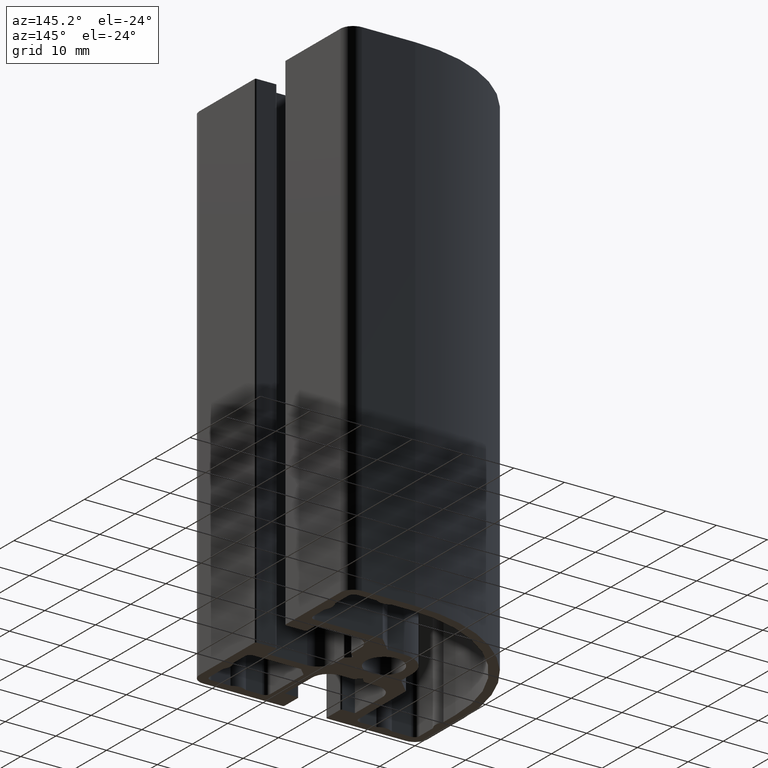
[diagram: clean part render]
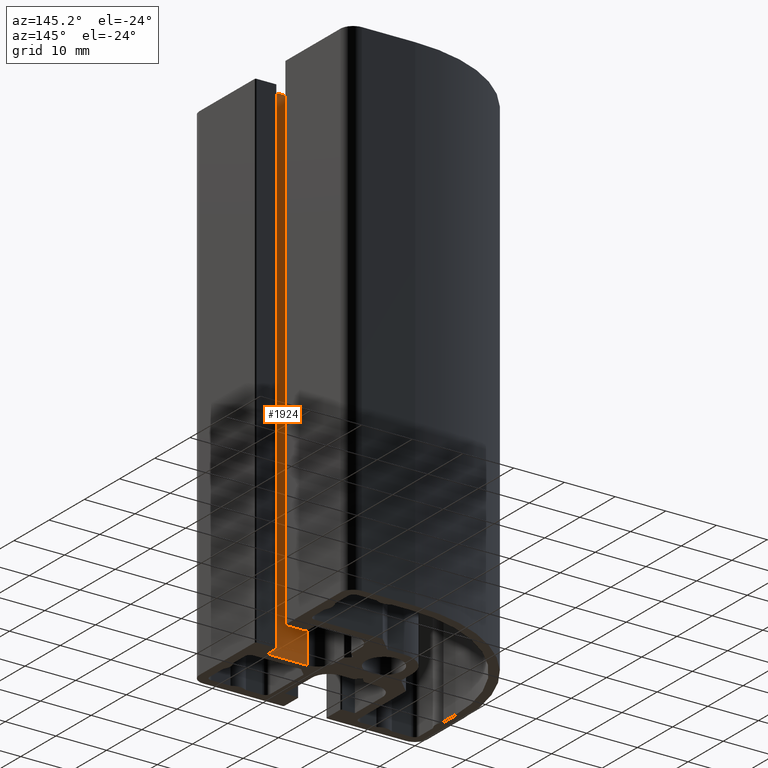
[diagram: same view with one face highlighted and labeled with its STEP entity id]
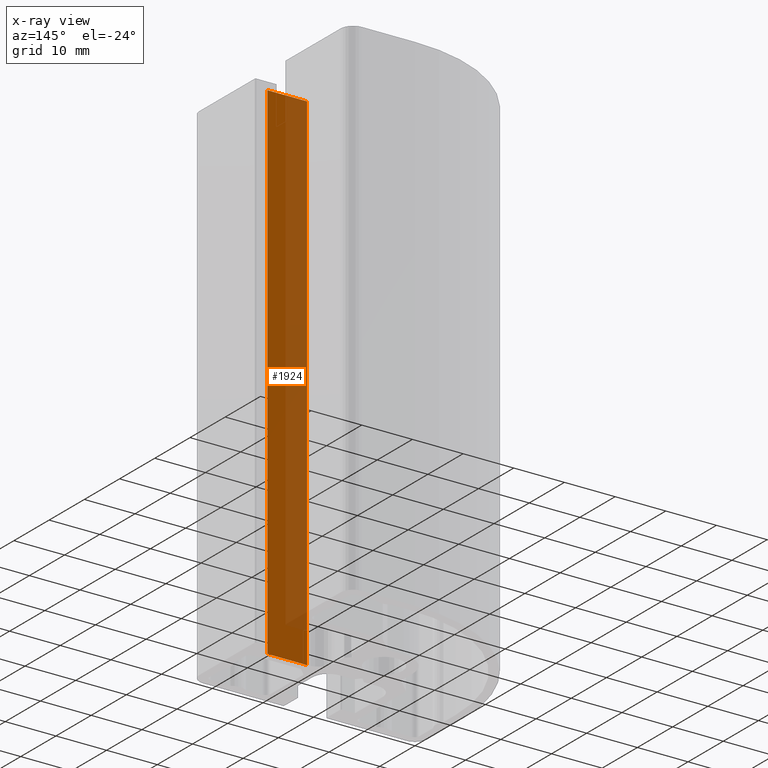
[diagram: x-ray of the same camera — body ghosted, the highlighted face saturated]
A machine part, auxiliary view. The second image highlights one B-rep face of the part: STEP entity #1924.
The next image is the same camera in x-ray: the body ghosted, the highlighted face saturated — about 51% of this face is hidden behind the body in this view.
In plain terms, the highlighted planar face has unit normal (-0, -1, 0).
Its self-contained STEP definition (entity closure, byte-faithful):
#45=PLANE('',#2087);
#125=FACE_OUTER_BOUND('',#225,.T.);
#225=EDGE_LOOP('',(#1454,#1455,#1456,#1457));
#375=LINE('',#3085,#565);
#376=LINE('',#3089,#566);
#377=LINE('',#3091,#567);
#378=LINE('',#3092,#568);
#565=VECTOR('',#2501,100.);
#566=VECTOR('',#2506,7.80000000000001);
#567=VECTOR('',#2507,100.);
#568=VECTOR('',#2508,7.80000000000001);
#864=VERTEX_POINT('',#3082);
#865=VERTEX_POINT('',#3084);
#866=VERTEX_POINT('',#3088);
#867=VERTEX_POINT('',#3090);
#1110=EDGE_CURVE('',#865,#864,#375,.T.);
#1112=EDGE_CURVE('',#866,#864,#376,.T.);
#1113=EDGE_CURVE('',#867,#866,#377,.T.);
#1114=EDGE_CURVE('',#865,#867,#378,.T.);
#1454=ORIENTED_EDGE('',*,*,#1112,.F.);
#1455=ORIENTED_EDGE('',*,*,#1113,.F.);
#1456=ORIENTED_EDGE('',*,*,#1114,.F.);
#1457=ORIENTED_EDGE('',*,*,#1110,.T.);
#1924=ADVANCED_FACE('',(#125),#45,.F.);
#2087=AXIS2_PLACEMENT_3D('',#3087,#2504,#2505);
#2501=DIRECTION('',(0.,0.,1.));
#2504=DIRECTION('center_axis',(-1.42336285208353E-16,-1.,0.));
#2505=DIRECTION('ref_axis',(1.,-1.77635683940025E-16,0.));
#2506=DIRECTION('',(-1.,1.42336285208353E-16,0.));
#2507=DIRECTION('',(0.,0.,1.));
#2508=DIRECTION('',(1.,-1.42336285208353E-16,0.));
#3082=CARTESIAN_POINT('',(10.4000000000006,-6.9,100.));
#3084=CARTESIAN_POINT('',(10.4000000000006,-6.9,0.));
#3085=CARTESIAN_POINT('',(10.4000000000006,-6.9,0.));
#3087=CARTESIAN_POINT('Origin',(10.4000000000006,-6.9,0.));
#3088=CARTESIAN_POINT('',(18.2000000000006,-6.9,100.));
#3089=CARTESIAN_POINT('',(5.20000000000029,-6.9,100.));
#3090=CARTESIAN_POINT('',(18.2000000000006,-6.9,0.));
#3091=CARTESIAN_POINT('',(18.2000000000006,-6.9,0.));
#3092=CARTESIAN_POINT('',(5.20000000000029,-6.9,0.));